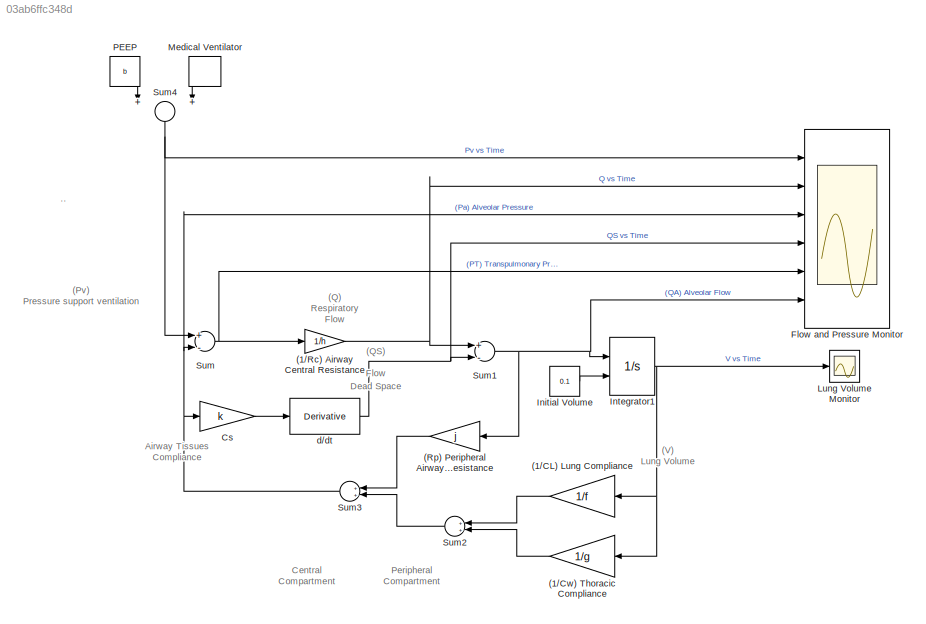
MODEL slx_03ab6ffc348d
KIND model
CONFIG AbsTol = 1e-3
CONFIG EnableMultiTasking = off
CONFIG FixedStep = 0.01
CONFIG MaxStep = 0.05
CONFIG MinStep = auto
CONFIG RelTol = 1e-3
CONFIG SampleTimeConstraint = Unconstrained
CONFIG Solver = FixedStepAuto
CONFIG SolverName = FixedStepAuto
CONFIG StartTime = 0.0
CONFIG StopTime = 15
WORKSPACE source: MAT-file member
WORKSPACE MCOS: class17 (value not decoded)
BLOCK [DiscretePulseGenerator]  Medical Ventilator
  Amplitude = c
  Period = 60/a
  Ports = [0, 1]
  PulseType = Time based
  PulseWidth = d
BLOCK [Gain] (1//CL) Lung Compliance
  Gain = 1/f
BLOCK [Gain] (1//Cw) Thoracic Compliance
  Gain = 1/g
BLOCK [Gain] (1//Rc) Airway Central Resistance 
  Gain = 1/h
BLOCK [Gain] (Rp) Peripheral Airways Resistance 
  Gain = j
BLOCK [Gain] Cs 
  Gain = k
BLOCK [Scope] Flow and Pressure Monitor
  Floating = off
  NumInputPorts = 6
  Ports = [6]
  ScopeSpecificationString = Simulink.scopes.TimeScopeBlockCfg('CurrentConfiguration', extmgr.ConfigurationSet(extmgr.Configuration('Core','General UI',true),extmgr.Configuration('Core','Source UI',true),extmgr.Configuration('Sources','WiredSimulink',true,'DataLoggingDecimation','1','DataLoggingSaveFormat','StructureWithTime','DataLogging',true,'DataLoggingVariableName','BioData'),extmgr.Configuration('Visuals','Time Domain',...<+5291ch>
BLOCK [Constant] Initial Volume
  Value = 0.1
BLOCK [Integrator] Integrator1
  InitialConditionSource = external
  Ports = [2, 1]
BLOCK [Scope] Lung Volume Monitor
  Floating = off
  NumInputPorts = 1
  Ports = [1]
  ScopeSpecificationString = Simulink.scopes.TimeScopeBlockCfg('CurrentConfiguration', extmgr.ConfigurationSet(extmgr.Configuration('Core','General UI',true),extmgr.Configuration('Core','Source UI',true),extmgr.Configuration('Sources','WiredSimulink',true,'DataLoggingVariableName','volumen','DataLogging',true,'DataLoggingSaveFormat','Array'),extmgr.Configuration('Visuals','Time Domain',true,'SerializedDisplays',{struct('MinYL...<+1645ch>
BLOCK [Constant] PEEP
  Value = b
BLOCK [Sum] Sum
  Inputs = +-
  Ports = [2, 1]
BLOCK [Sum] Sum1
  Inputs = +-
  Ports = [2, 1]
BLOCK [Sum] Sum2
  Ports = [2, 1]
BLOCK [Sum] Sum3
  Ports = [2, 1]
BLOCK [Sum] Sum4
  Ports = [2, 1]
BLOCK [Derivative] d//dt 
  CoefficientInTFapproximation = 1
ANNOTATION (root): Central Compartment
ANNOTATION (root): Peripheral Compartment
ANNOTATION (root): Airway Tissues Compliance
ANNOTATION (root): ..
ANNOTATION (root): (Pv) Pressure support ventilation
ANNOTATION (root): (Q) Respiratory Flow
ANNOTATION (root): (QS) Dead Space Flow
ANNOTATION (root): (V) Lung Volume
LINE  Medical Ventilator:1 -> Sum4:2
LINE (1//CL) Lung Compliance:1 -> Sum2:1
LINE (1//Cw) Thoracic Compliance:1 -> Sum2:2
NET (1//Rc) Airway Central Resistance :1 -> Flow and Pressure Monitor:2, Sum1:1
LINE (Rp) Peripheral Airways Resistance :1 -> Sum3:1
LINE Cs :1 -> d//dt :1
LINE Initial Volume:1 -> Integrator1:2
NET Integrator1:1 -> (1//CL) Lung Compliance:1, (1//Cw) Thoracic Compliance:1, Lung Volume Monitor:1
LINE PEEP:1 -> Sum4:1
NET Sum1:1 -> (Rp) Peripheral Airways Resistance :1, Flow and Pressure Monitor:6, Integrator1:1
LINE Sum2:1 -> Sum3:2
NET Sum3:1 -> Cs :1, Flow and Pressure Monitor:3, Sum:2
NET Sum4:1 -> Flow and Pressure Monitor:1, Sum:1
NET Sum:1 -> (1//Rc) Airway Central Resistance :1, Flow and Pressure Monitor:5
NET d//dt :1 -> Flow and Pressure Monitor:4, Sum1:2
note: NET lines group one-source signal fan-out (src -> all destinations, sorted); 1:1 wires keep LINE
